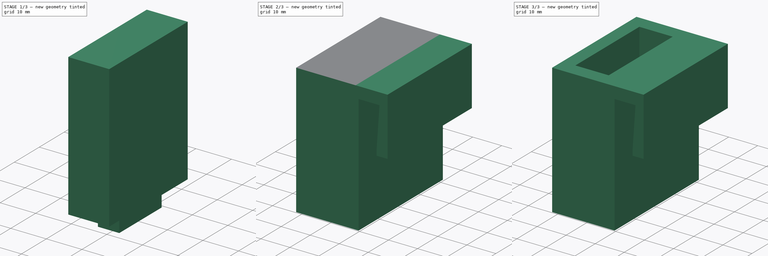
[diagram: build sequence overview — one tinted view per stage of 3, left to right]
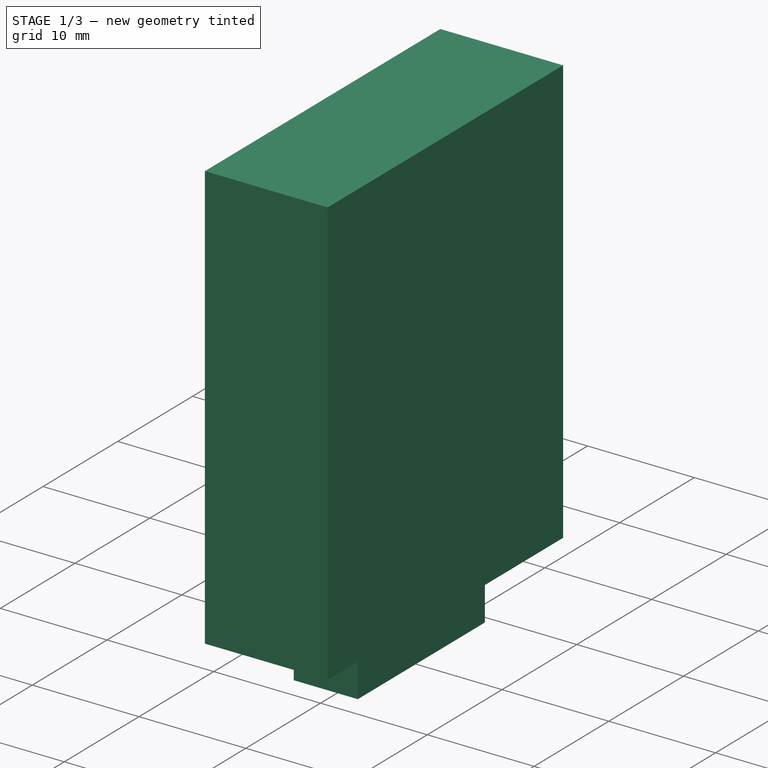
[diagram: stage 1 of 3 — iso view after this stage's code; geometry added in this stage tinted green]
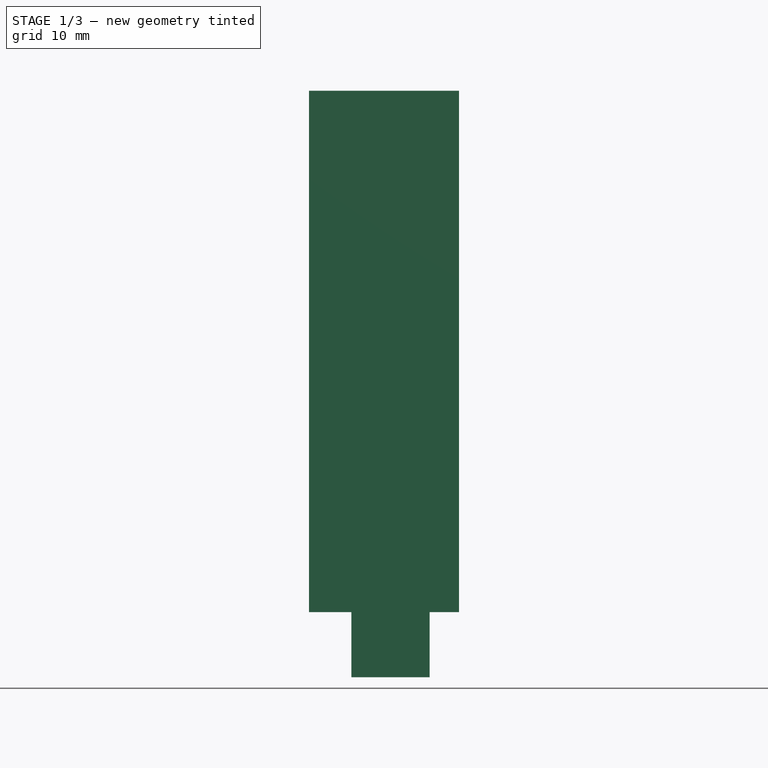
[diagram: stage 1 of 3 — front view after this stage's code; geometry added in this stage tinted green]
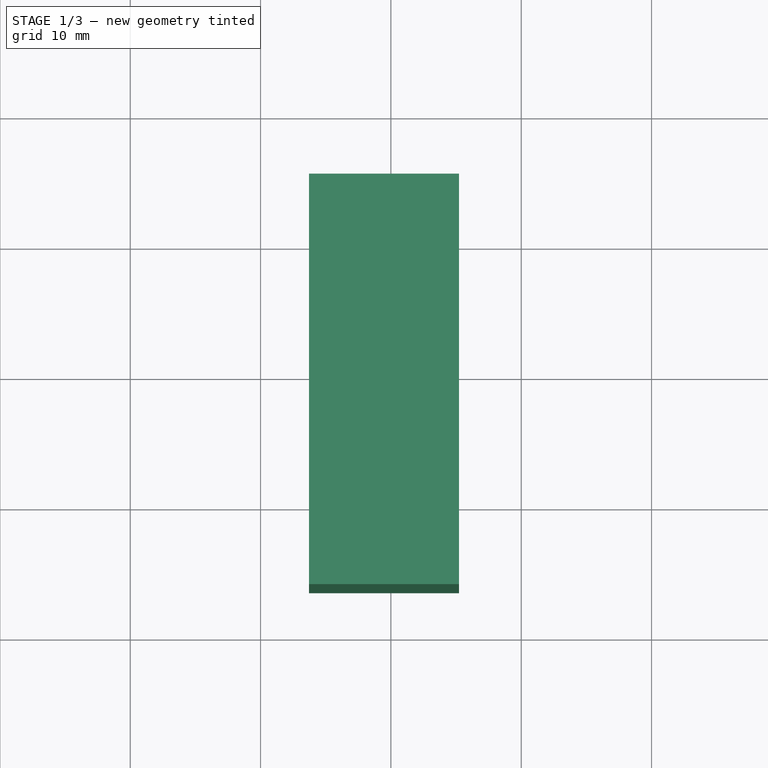
[diagram: stage 1 of 3 — top view after this stage's code; geometry added in this stage tinted green]
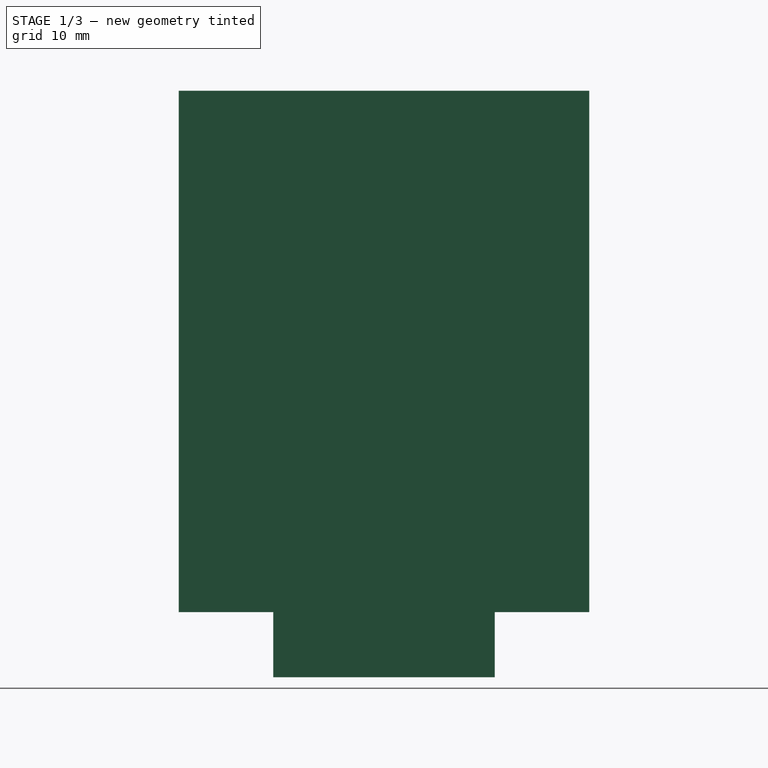
[diagram: stage 1 of 3 — right view after this stage's code; geometry added in this stage tinted green]
FCSTD DOCUMENT  (FreeCAD 0.20R)
Label: filter_p53_holder
License: All rights reserved
LicenseURL: http://en.wikipedia.org/wiki/All_rights_reserved
objects: Part::Box×2, Part::Cut×2, Sketcher::SketchObject×1, Part::Extrusion×1
note: 6 computed .brp shape members not serialized (recipe doc carries the construction recipe); baked Part::Feature solids carry a one-line shape summary decoded from their .brp

FEATURE [Part::Box] Box  label="Cube"
  AttacherType = Attacher::AttachEngine3D
  Height = 40
  Length = 11.5
  Placement = pos=(-36.28,-36.5,20.2669) rot=(0,0,1;0rad)
  Width = 31.5
  expr: Height = 40
  expr: Length = 11.5mm
  expr: Width = 31.5mm
FEATURE [Part::Box] Box001  label="Cube001"
  AttacherType = Attacher::AttachEngine3D
  Height = 5
  Length = 6
  Placement = pos=(-33.03,-29.25,15.2669) rot=(0,0,1;0rad)
  Width = 17
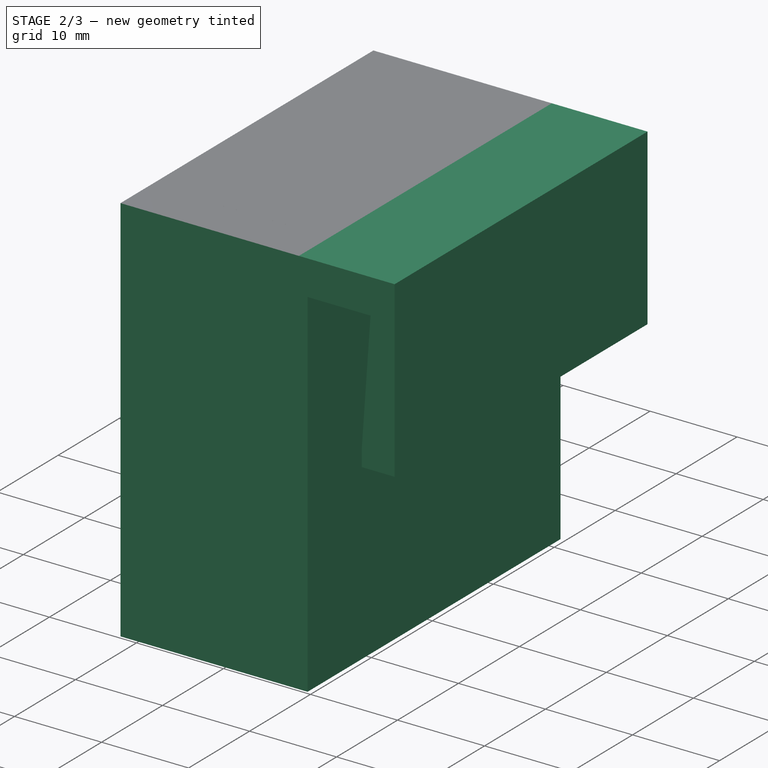
[diagram: stage 2 of 3 — iso view after this stage's code; geometry added in this stage tinted green]
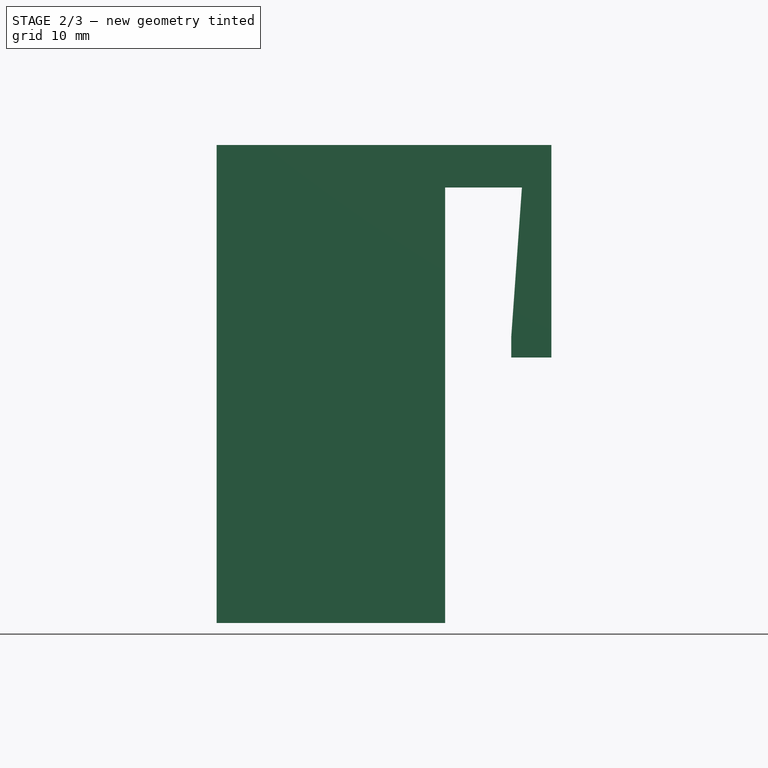
[diagram: stage 2 of 3 — front view after this stage's code; geometry added in this stage tinted green]
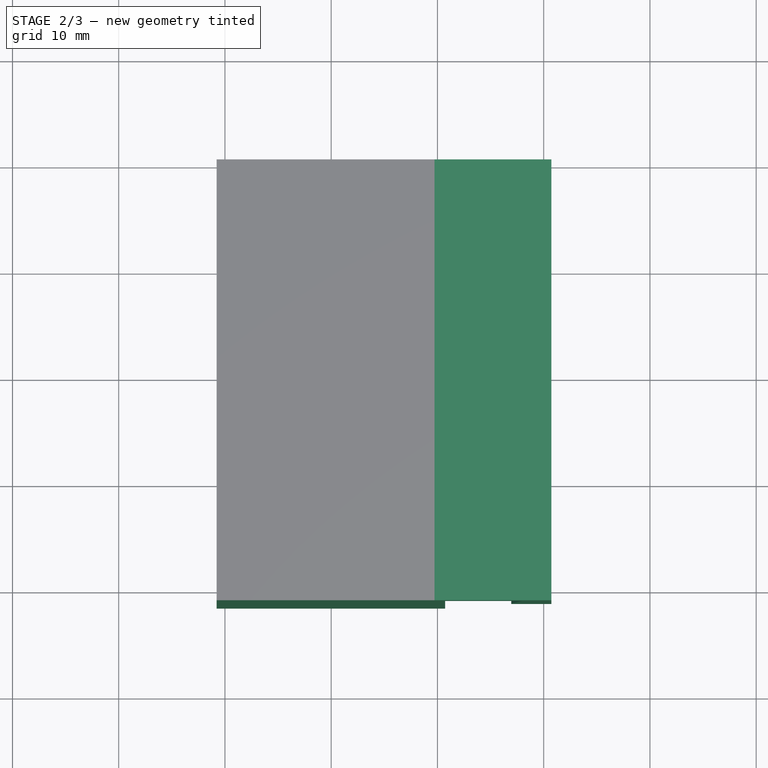
[diagram: stage 2 of 3 — top view after this stage's code; geometry added in this stage tinted green]
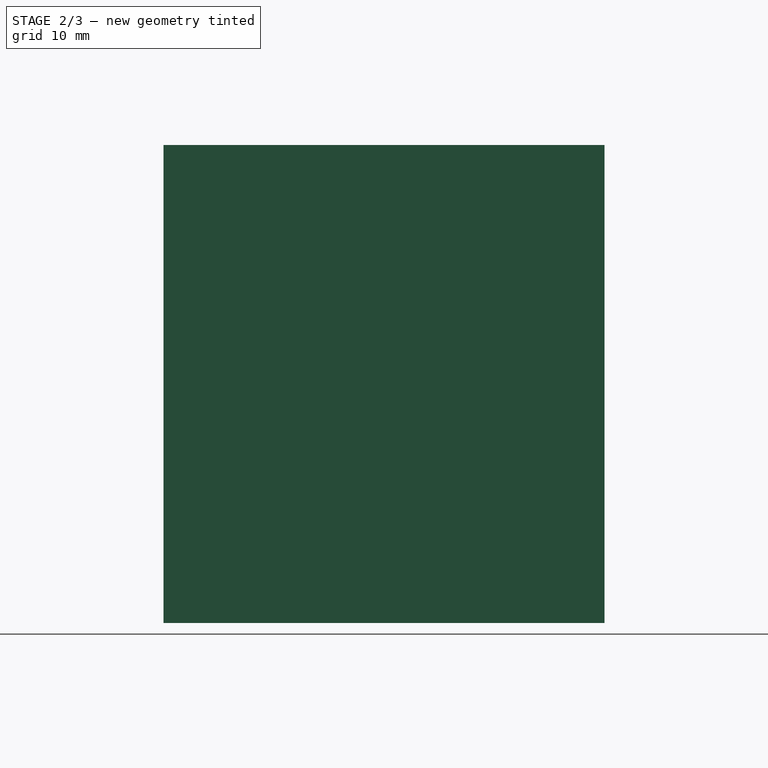
[diagram: stage 2 of 3 — right view after this stage's code; geometry added in this stage tinted green]
FEATURE [Sketcher::SketchObject] Sketch
  FullyConstrained = false
  Placement = pos=(0,0,0) rot=(1,0,0;1.5708rad)
  sketch-geometry (10):
    g0: LineSegment StartX=-13.05 StartY=40.2669 StartZ=0 EndX=-9.28002 EndY=40.2669 EndZ=0
    g1: LineSegment StartX=-13.05 StartY=40.2669 StartZ=0 EndX=-13.05 EndY=42.2669 EndZ=0
    g2: LineSegment StartX=-9.28002 StartY=40.2669 StartZ=0 EndX=-9.28002 EndY=60.2669 EndZ=0
    g3: LineSegment StartX=-9.28002 StartY=60.2669 StartZ=0 EndX=-20.28 EndY=60.2669 EndZ=0
    g4: LineSegment StartX=-13.05 StartY=42.2669 StartZ=0 EndX=-12.05 EndY=56.2669 EndZ=0
    g5: LineSegment StartX=-12.05 StartY=56.2669 StartZ=0 EndX=-19.28 EndY=56.2669 EndZ=0
    g6: LineSegment StartX=-19.28 StartY=56.2669 StartZ=0 EndX=-19.28 EndY=15.2669 EndZ=0
    g7: LineSegment StartX=-19.28 StartY=15.2669 StartZ=0 EndX=-40.78 EndY=15.2669 EndZ=0
    g8: LineSegment StartX=-40.78 StartY=15.2669 StartZ=0 EndX=-40.78 EndY=60.2669 EndZ=0
    g9: LineSegment StartX=-40.78 StartY=60.2669 StartZ=0 EndX=-20.28 EndY=60.2669 EndZ=0
  constraints (28):
    c: Horizontal(g0)
    c: Coincident(g1,g0)
    c: Vertical(g1)
    c: Coincident(g2,g0)
    c: Vertical(g2)
    c: Coincident(g3,g2)
    c: Horizontal(g3)
    c: Coincident(g4,g1)
    c: Coincident(g5,g4)
    c: Horizontal(g5)
    c: DistanceX(g0,g0) = 3.77
    c: DistanceX(g3,g3) = 11
    c: DistanceY(g2,g2) = 20
    c: DistanceY(g1,g1) = 2
    c: Coincident(g6,g5)
    c: Vertical(g6)
    c: Coincident(g7,g6)
    c: Horizontal(g7)
    c: Coincident(g8,g7)
    c: Vertical(g8)
    c: Coincident(g9,g8)
    c: Coincident(g9,g3)
    c: Horizontal(g9)
    c: DistanceY(g8,g8) = 45
    c: DistanceX(g7,g7) = 21.5
    c: DistanceX(g5,g5) = 7.23
    c: DistanceY(g4,g4) = 14
    c: DistanceX(g4,g4) = 1
FEATURE [Part::Extrusion] Extrude
  Base = -> Sketch
  Dir = (0,-1,-3e-16)
  DirMode = 2
  FaceMakerClass = Part::FaceMakerBullseye
  LengthFwd = 41.5
  LengthRev = 0
  Solid = true
  Symmetric = false
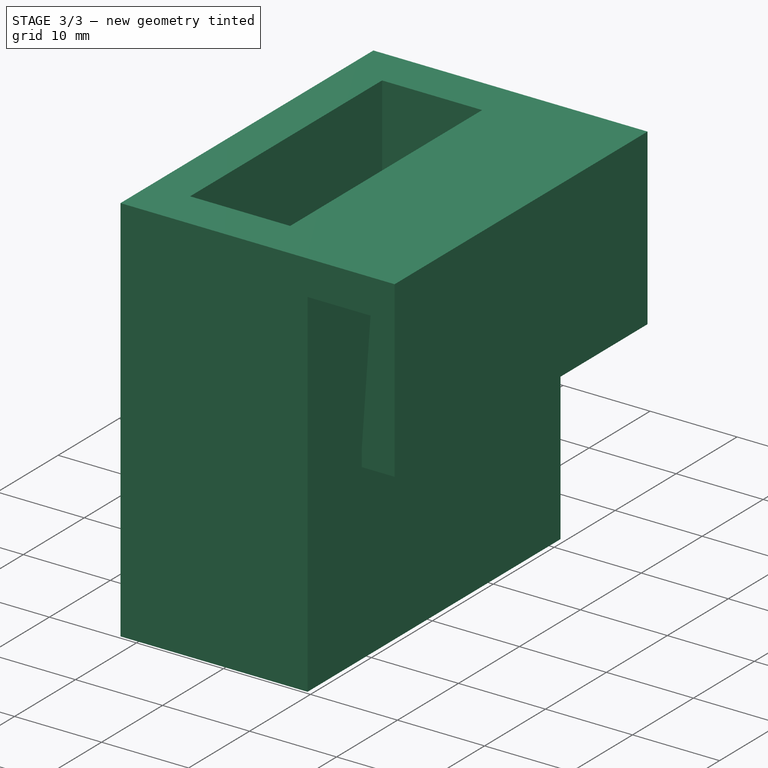
[diagram: stage 3 of 3 — iso view after this stage's code; geometry added in this stage tinted green]
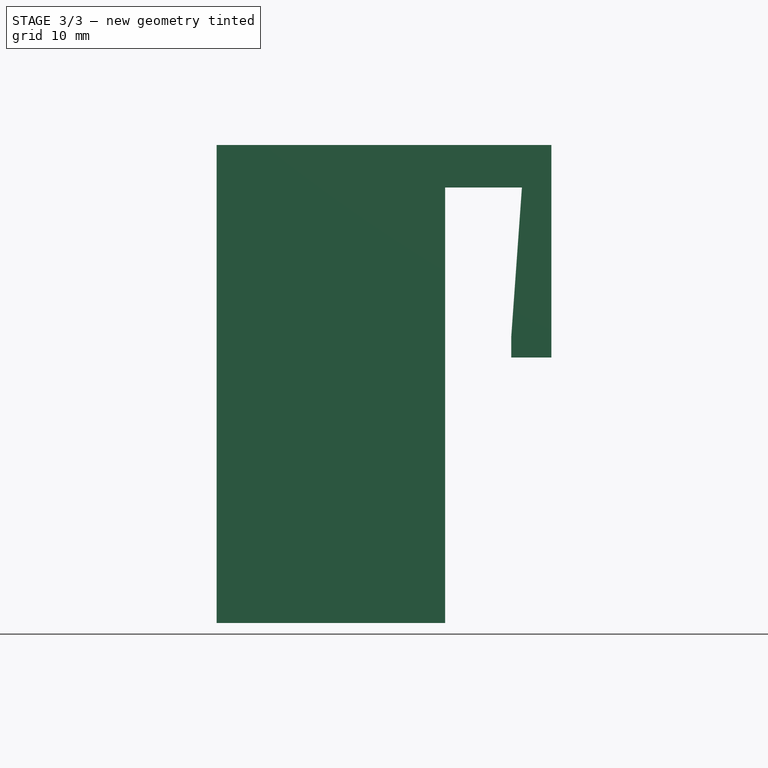
[diagram: stage 3 of 3 — front view after this stage's code; geometry added in this stage tinted green]
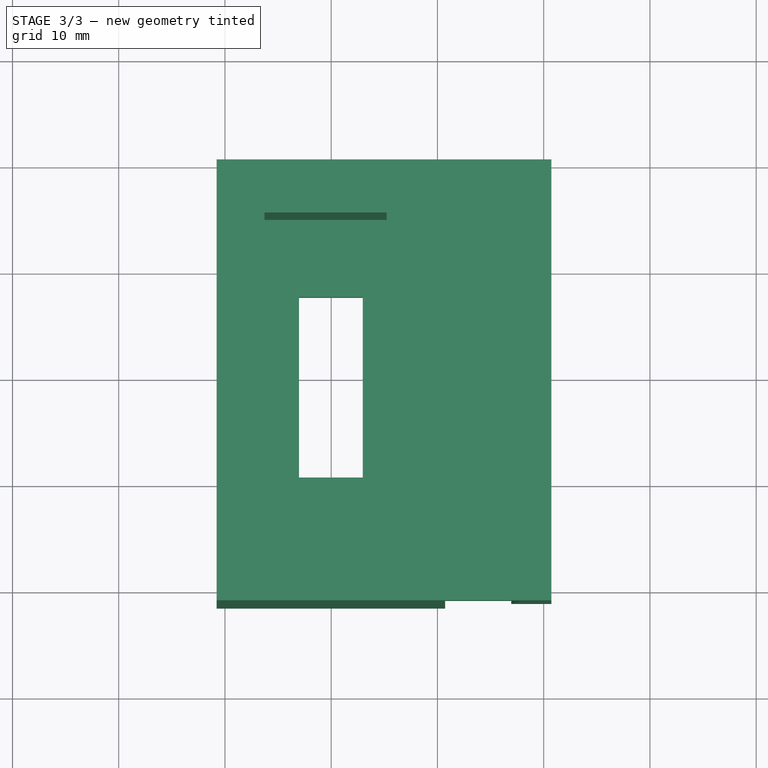
[diagram: stage 3 of 3 — top view after this stage's code; geometry added in this stage tinted green]
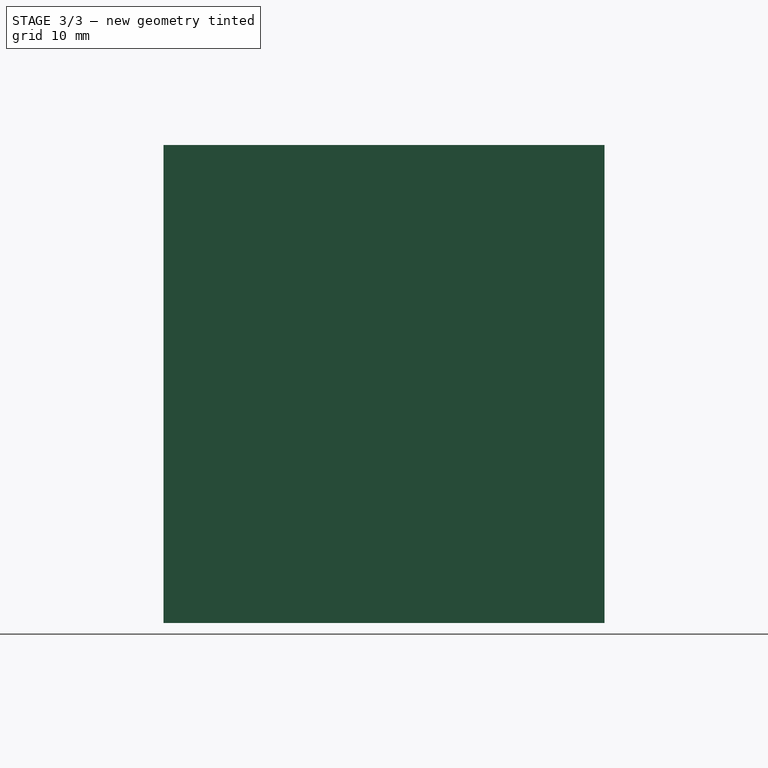
[diagram: stage 3 of 3 — right view after this stage's code; geometry added in this stage tinted green]
FEATURE [Part::Cut] Cut
  Base = -> Extrude
  Tool = -> Box
FEATURE [Part::Cut] Cut001
  Base = -> Cut
  Tool = -> Box001
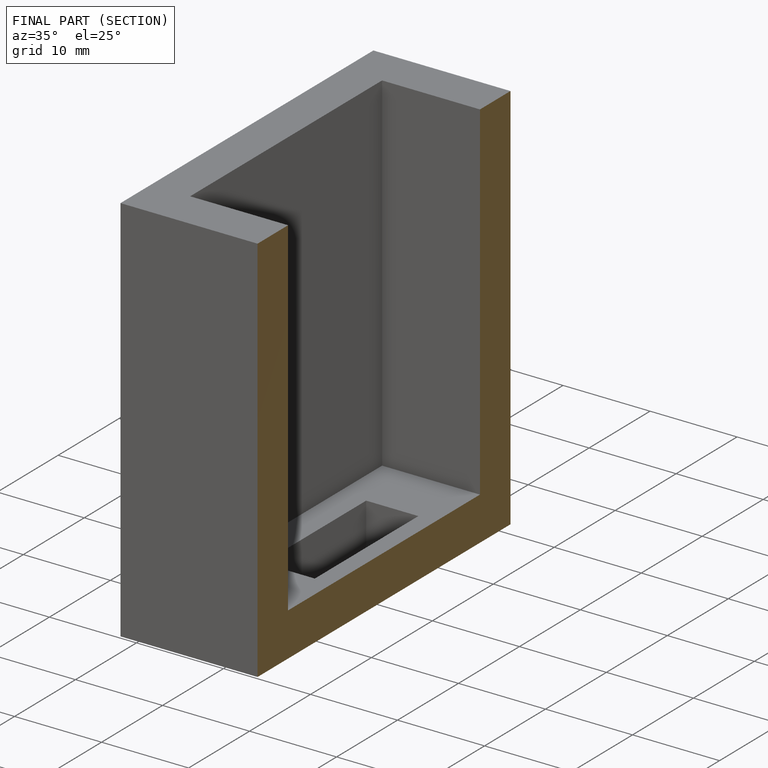
[diagram: finished part — half-section view (interior)]
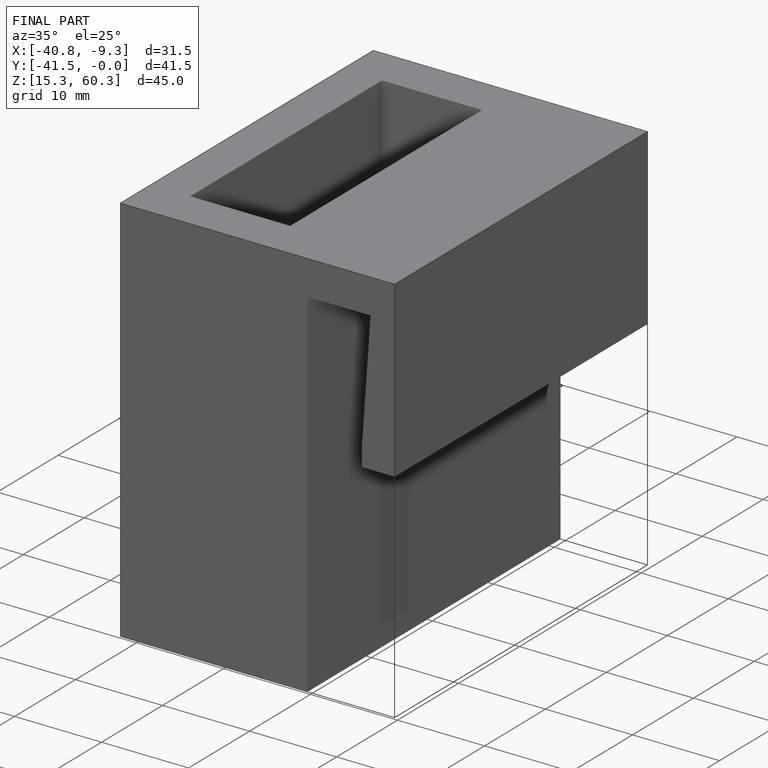
[diagram: finished part — iso view with bounding-box wireframe]
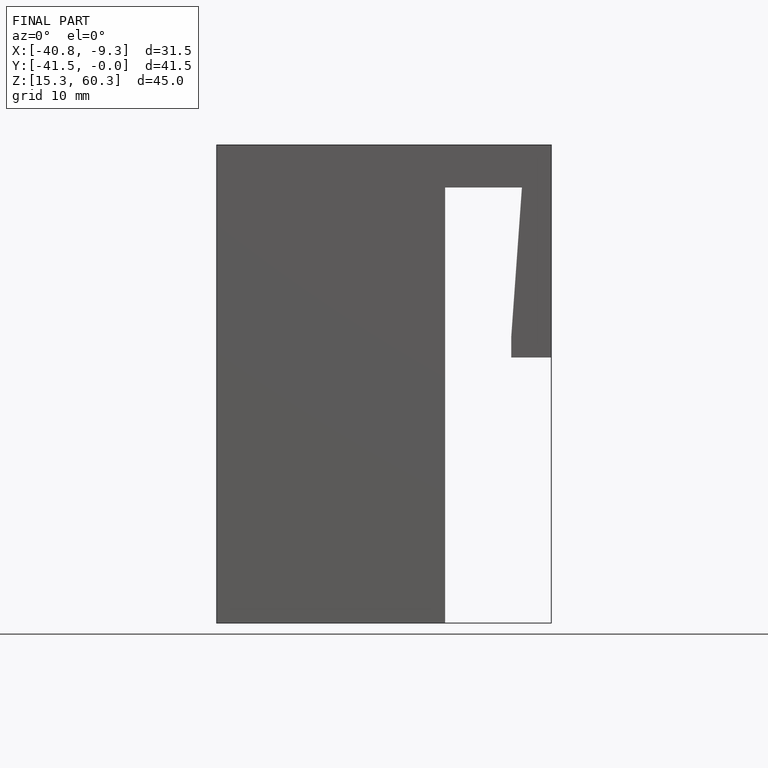
[diagram: finished part — front view with bounding-box wireframe]
